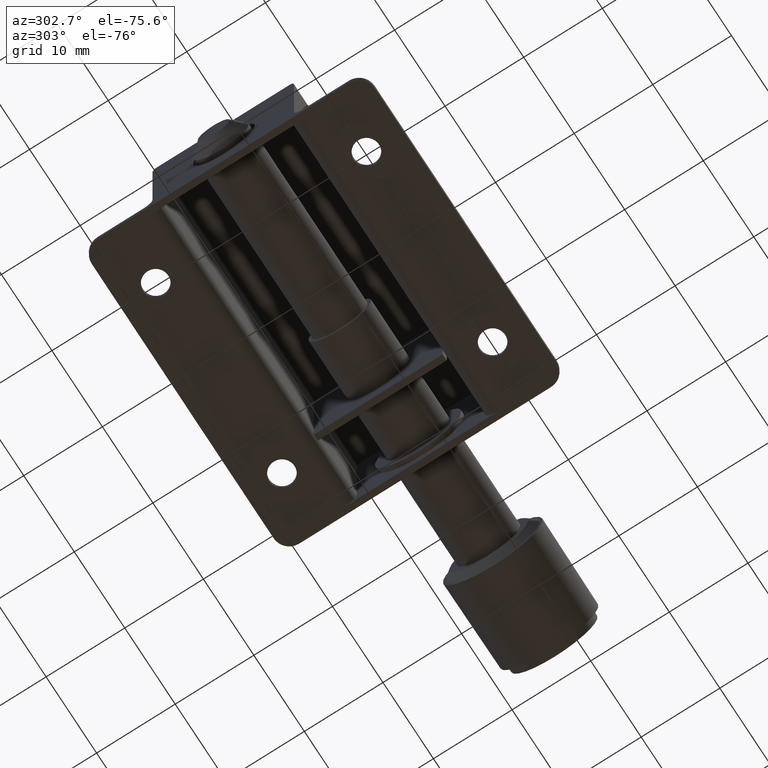
[diagram: clean part render]
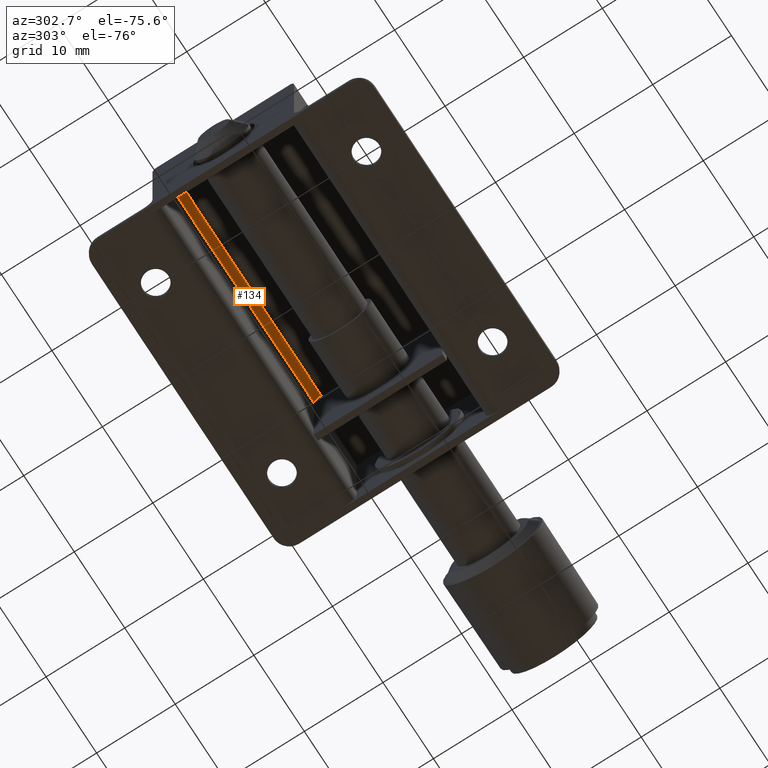
[diagram: same view with one face highlighted and labeled with its STEP entity id]
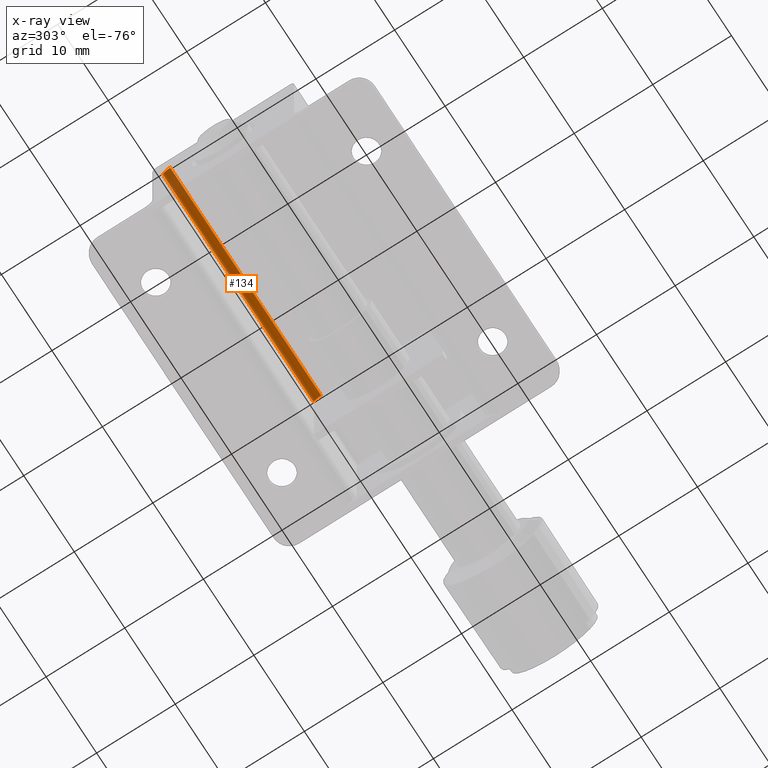
[diagram: x-ray of the same camera — body ghosted, the highlighted face saturated]
A machine part, auxiliary view. The second image highlights one B-rep face of the part: STEP entity #134.
The next image is the same camera in x-ray: the body ghosted, the highlighted face saturated — about 7% of this face is hidden behind the body in this view.
In plain terms, the highlighted cylindrical surface (edge-blend (fillet) strip) has radius 0.95 mm, axis along (-1, -0, -0).
Its self-contained STEP definition (entity closure, byte-faithful):
#134=ADVANCED_FACE('',(#434),#433,.F.);
#433=CYLINDRICAL_SURFACE('',#1302,9.50000000000E-01);
#434=FACE_OUTER_BOUND('',#1303,.T.);
#1299=CARTESIAN_POINT('',(-9.67500000000E+02,2.06500000000E+01,1.30500000000E+01));
#1300=DIRECTION('',(-1.00000000000E+00,-0.00000000000E+00,-0.00000000000E+00));
#1301=DIRECTION('',(-0.00000000000E+00,-0.00000000000E+00,1.00000000000E+00));
#1302=AXIS2_PLACEMENT_3D('',#1299,#1300,#1301);
#1303=EDGE_LOOP('',(#1840,#1841,#1842,#1843));
#1840=ORIENTED_EDGE('',*,*,#2247,.F.);
#1841=ORIENTED_EDGE('',*,*,#2248,.F.);
#1842=ORIENTED_EDGE('',*,*,#2249,.T.);
#1843=ORIENTED_EDGE('',*,*,#2250,.T.);
#2247=EDGE_CURVE('',#3079,#3080,#3081,.T.);
#2248=EDGE_CURVE('',#3087,#3079,#3088,.T.);
#2249=EDGE_CURVE('',#3087,#3094,#3095,.T.);
#2250=EDGE_CURVE('',#3094,#3080,#3101,.T.);
#3079=VERTEX_POINT('',#4339);
#3080=VERTEX_POINT('',#4340);
#3081=CIRCLE('',#4344,9.50000000000E-01);
#3087=VERTEX_POINT('',#4345);
#3088=LINE('',#4346,#4347);
#3094=VERTEX_POINT('',#4349);
#3095=CIRCLE('',#4353,9.50000000000E-01);
#3101=LINE('',#4354,#4355);
#4339=CARTESIAN_POINT('',(2.32000000000E+01,2.06500000000E+01,1.40000000000E+01));
#4340=CARTESIAN_POINT('',(2.32000000000E+01,2.16000000000E+01,1.30500000000E+01));
#4341=CARTESIAN_POINT('',(2.32000000000E+01,2.06500000000E+01,1.30500000000E+01));
#4342=DIRECTION('',(-1.00000000000E+00,0.00000000000E+00,0.00000000000E+00));
#4343=DIRECTION('',(-0.00000000000E+00,-0.00000000000E+00,-1.00000000000E+00));
#4344=AXIS2_PLACEMENT_3D('',#4341,#4342,#4343);
#4345=CARTESIAN_POINT('',(-6.70000000000E+00,2.06500000000E+01,1.40000000000E+01));
#4346=CARTESIAN_POINT('',(-6.70000000000E+00,2.06500000000E+01,1.40000000000E+01));
#4347=VECTOR('',#4348,2.99000000000E+01);
#4348=DIRECTION('',(1.00000000000E+00,0.00000000000E+00,0.00000000000E+00));
#4349=CARTESIAN_POINT('',(-6.70000000000E+00,2.16000000000E+01,1.30500000000E+01));
#4350=CARTESIAN_POINT('',(-6.70000000000E+00,2.06500000000E+01,1.30500000000E+01));
#4351=DIRECTION('',(-1.00000000000E+00,0.00000000000E+00,0.00000000000E+00));
#4352=DIRECTION('',(-0.00000000000E+00,1.00000000000E+00,-1.83690953073E-16));
#4353=AXIS2_PLACEMENT_3D('',#4350,#4351,#4352);
#4354=CARTESIAN_POINT('',(-6.70000000000E+00,2.16000000000E+01,1.30500000000E+01));
#4355=VECTOR('',#4356,2.99000000000E+01);
#4356=DIRECTION('',(1.00000000000E+00,0.00000000000E+00,0.00000000000E+00));